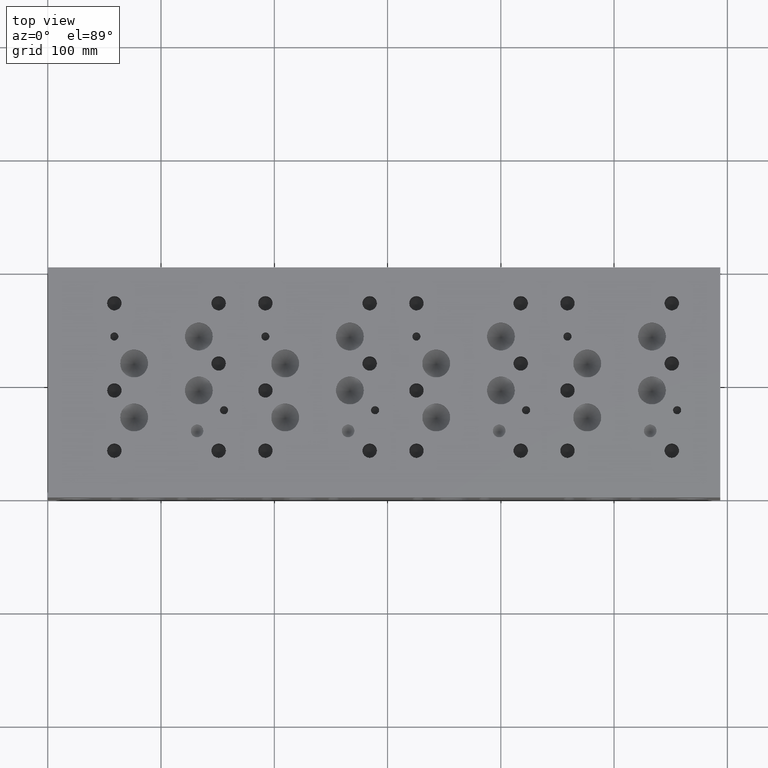
[diagram: clean part render]
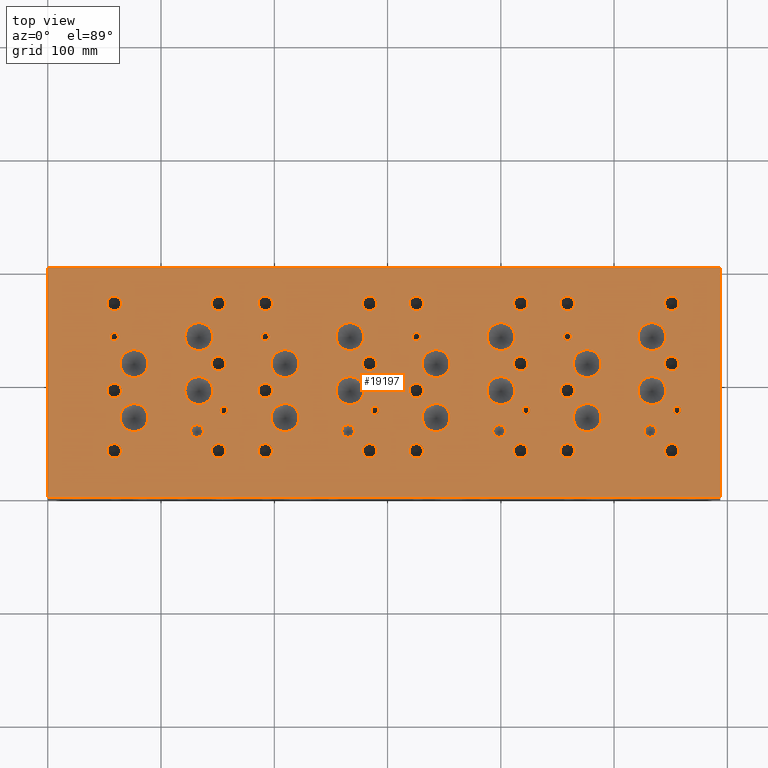
[diagram: same view with one face highlighted and labeled with its STEP entity id]
A machine part, top view. The second image highlights one B-rep face of the part: STEP entity #19197.
In plain terms, the highlighted planar face has unit normal (0, 0, 1).
Its self-contained STEP definition (entity closure, byte-faithful):
#989=CIRCLE('',#20367,6.35);
#990=CIRCLE('',#20368,6.35);
#996=CIRCLE('',#20378,6.35);
#997=CIRCLE('',#20379,6.35);
#1003=CIRCLE('',#20389,6.35);
#1004=CIRCLE('',#20390,6.35);
#1010=CIRCLE('',#20400,6.35);
#1011=CIRCLE('',#20401,6.35);
#1017=CIRCLE('',#20411,6.35);
#1018=CIRCLE('',#20412,6.35);
#1024=CIRCLE('',#20422,6.35);
#1025=CIRCLE('',#20423,6.35);
#1031=CIRCLE('',#20433,6.35);
#1032=CIRCLE('',#20434,6.35);
#1038=CIRCLE('',#20444,6.35);
#1039=CIRCLE('',#20445,6.35);
#1045=CIRCLE('',#20455,6.35);
#1046=CIRCLE('',#20456,6.35);
#1052=CIRCLE('',#20466,6.35);
#1053=CIRCLE('',#20467,6.35);
#1059=CIRCLE('',#20477,6.35);
#1060=CIRCLE('',#20478,6.35);
#1066=CIRCLE('',#20488,6.35);
#1067=CIRCLE('',#20489,6.35);
#1073=CIRCLE('',#20499,6.35);
#1074=CIRCLE('',#20500,6.35);
#1080=CIRCLE('',#20510,6.35);
#1081=CIRCLE('',#20511,6.35);
#1087=CIRCLE('',#20521,6.35);
#1088=CIRCLE('',#20522,6.35);
#1094=CIRCLE('',#20532,6.35);
#1095=CIRCLE('',#20533,6.35);
#1101=CIRCLE('',#20543,6.35);
#1102=CIRCLE('',#20544,6.35);
#1108=CIRCLE('',#20554,6.35);
#1109=CIRCLE('',#20555,6.35);
#1112=CIRCLE('',#20561,5.5626);
#1113=CIRCLE('',#20562,5.5626);
#1116=CIRCLE('',#20567,5.5626);
#1117=CIRCLE('',#20568,5.5626);
#1120=CIRCLE('',#20573,5.5626);
#1121=CIRCLE('',#20574,5.5626);
#1124=CIRCLE('',#20579,5.5626);
#1125=CIRCLE('',#20580,5.5626);
#1128=CIRCLE('',#20585,12.3063);
#1129=CIRCLE('',#20586,12.3063);
#1132=CIRCLE('',#20591,12.3063);
#1133=CIRCLE('',#20592,12.3063);
#1136=CIRCLE('',#20597,12.3063);
#1137=CIRCLE('',#20598,12.3063);
#1140=CIRCLE('',#20603,12.3063);
#1141=CIRCLE('',#20604,12.3063);
#1144=CIRCLE('',#20609,12.3063);
#1145=CIRCLE('',#20610,12.3063);
#1148=CIRCLE('',#20615,12.3063);
#1149=CIRCLE('',#20616,12.3063);
#1152=CIRCLE('',#20621,12.3063);
#1153=CIRCLE('',#20622,12.3063);
#1156=CIRCLE('',#20627,12.3063);
#1157=CIRCLE('',#20628,12.3063);
#1160=CIRCLE('',#20633,12.3063);
#1161=CIRCLE('',#20634,12.3063);
#1164=CIRCLE('',#20639,12.3063);
#1165=CIRCLE('',#20640,12.3063);
#1168=CIRCLE('',#20645,12.3063);
#1169=CIRCLE('',#20646,12.3063);
#1172=CIRCLE('',#20651,12.3063);
#1173=CIRCLE('',#20652,12.3063);
#1176=CIRCLE('',#20657,12.3063);
#1177=CIRCLE('',#20658,12.3063);
#1180=CIRCLE('',#20663,12.3063);
#1181=CIRCLE('',#20664,12.3063);
#1184=CIRCLE('',#20669,12.3063);
#1185=CIRCLE('',#20670,12.3063);
#1188=CIRCLE('',#20675,12.3063);
#1189=CIRCLE('',#20676,12.3063);
#1192=CIRCLE('',#20681,3.5687);
#1193=CIRCLE('',#20682,3.5687);
#1196=CIRCLE('',#20687,3.5687);
#1197=CIRCLE('',#20688,3.5687);
#1200=CIRCLE('',#20693,3.5687);
#1201=CIRCLE('',#20694,3.5687);
#1204=CIRCLE('',#20699,3.5687);
#1205=CIRCLE('',#20700,3.5687);
#1208=CIRCLE('',#20705,3.5687);
#1209=CIRCLE('',#20706,3.5687);
#1212=CIRCLE('',#20711,3.5687);
#1213=CIRCLE('',#20712,3.5687);
#1216=CIRCLE('',#20717,3.5687);
#1217=CIRCLE('',#20718,3.5687);
#1220=CIRCLE('',#20723,3.5687);
#1221=CIRCLE('',#20724,3.5687);
#1227=CIRCLE('',#20733,6.35);
#1228=CIRCLE('',#20734,6.35);
#1234=CIRCLE('',#20744,6.35);
#1235=CIRCLE('',#20745,6.35);
#1241=CIRCLE('',#20755,6.35);
#1242=CIRCLE('',#20756,6.35);
#1248=CIRCLE('',#20766,6.35);
#1249=CIRCLE('',#20767,6.35);
#1255=CIRCLE('',#20777,6.35);
#1256=CIRCLE('',#20778,6.35);
#1262=CIRCLE('',#20788,6.35);
#1263=CIRCLE('',#20789,6.35);
#1813=FACE_BOUND('',#4079,.T.);
#1814=FACE_BOUND('',#4080,.T.);
#1815=FACE_BOUND('',#4081,.T.);
#1816=FACE_BOUND('',#4082,.T.);
#1817=FACE_BOUND('',#4083,.T.);
#1818=FACE_BOUND('',#4084,.T.);
#1819=FACE_BOUND('',#4085,.T.);
#1820=FACE_BOUND('',#4086,.T.);
#1821=FACE_BOUND('',#4087,.T.);
#1822=FACE_BOUND('',#4088,.T.);
#1823=FACE_BOUND('',#4089,.T.);
#1824=FACE_BOUND('',#4090,.T.);
#1825=FACE_BOUND('',#4091,.T.);
#1826=FACE_BOUND('',#4092,.T.);
#1827=FACE_BOUND('',#4093,.T.);
#1828=FACE_BOUND('',#4094,.T.);
#1829=FACE_BOUND('',#4095,.T.);
#1830=FACE_BOUND('',#4096,.T.);
#1831=FACE_BOUND('',#4097,.T.);
#1832=FACE_BOUND('',#4098,.T.);
#1833=FACE_BOUND('',#4099,.T.);
#1834=FACE_BOUND('',#4100,.T.);
#1835=FACE_BOUND('',#4101,.T.);
#1836=FACE_BOUND('',#4102,.T.);
#1837=FACE_BOUND('',#4103,.T.);
#1838=FACE_BOUND('',#4104,.T.);
#1839=FACE_BOUND('',#4105,.T.);
#1840=FACE_BOUND('',#4106,.T.);
#1841=FACE_BOUND('',#4107,.T.);
#1842=FACE_BOUND('',#4108,.T.);
#1843=FACE_BOUND('',#4109,.T.);
#1844=FACE_BOUND('',#4110,.T.);
#1845=FACE_BOUND('',#4111,.T.);
#1846=FACE_BOUND('',#4112,.T.);
#1847=FACE_BOUND('',#4113,.T.);
#1848=FACE_BOUND('',#4114,.T.);
#1849=FACE_BOUND('',#4115,.T.);
#1850=FACE_BOUND('',#4116,.T.);
#1851=FACE_BOUND('',#4117,.T.);
#1852=FACE_BOUND('',#4118,.T.);
#1853=FACE_BOUND('',#4119,.T.);
#1854=FACE_BOUND('',#4120,.T.);
#1855=FACE_BOUND('',#4121,.T.);
#1856=FACE_BOUND('',#4122,.T.);
#1857=FACE_BOUND('',#4123,.T.);
#1858=FACE_BOUND('',#4124,.T.);
#1859=FACE_BOUND('',#4125,.T.);
#1860=FACE_BOUND('',#4126,.T.);
#1861=FACE_BOUND('',#4127,.T.);
#1862=FACE_BOUND('',#4128,.T.);
#1863=FACE_BOUND('',#4129,.T.);
#1864=FACE_BOUND('',#4130,.T.);
#2864=FACE_OUTER_BOUND('',#4078,.T.);
#4078=EDGE_LOOP('',(#17032,#17033,#17034,#17035));
#4079=EDGE_LOOP('',(#17036,#17037));
#4080=EDGE_LOOP('',(#17038,#17039));
#4081=EDGE_LOOP('',(#17040,#17041));
#4082=EDGE_LOOP('',(#17042,#17043));
#4083=EDGE_LOOP('',(#17044,#17045));
#4084=EDGE_LOOP('',(#17046,#17047));
#4085=EDGE_LOOP('',(#17048,#17049));
#4086=EDGE_LOOP('',(#17050,#17051));
#4087=EDGE_LOOP('',(#17052,#17053));
#4088=EDGE_LOOP('',(#17054,#17055));
#4089=EDGE_LOOP('',(#17056,#17057));
#4090=EDGE_LOOP('',(#17058,#17059));
#4091=EDGE_LOOP('',(#17060,#17061));
#4092=EDGE_LOOP('',(#17062,#17063));
#4093=EDGE_LOOP('',(#17064,#17065));
#4094=EDGE_LOOP('',(#17066,#17067));
#4095=EDGE_LOOP('',(#17068,#17069));
#4096=EDGE_LOOP('',(#17070,#17071));
#4097=EDGE_LOOP('',(#17072,#17073));
#4098=EDGE_LOOP('',(#17074,#17075));
#4099=EDGE_LOOP('',(#17076,#17077));
#4100=EDGE_LOOP('',(#17078,#17079));
#4101=EDGE_LOOP('',(#17080,#17081));
#4102=EDGE_LOOP('',(#17082,#17083));
#4103=EDGE_LOOP('',(#17084,#17085));
#4104=EDGE_LOOP('',(#17086,#17087));
#4105=EDGE_LOOP('',(#17088,#17089));
#4106=EDGE_LOOP('',(#17090,#17091));
#4107=EDGE_LOOP('',(#17092,#17093));
#4108=EDGE_LOOP('',(#17094,#17095));
#4109=EDGE_LOOP('',(#17096,#17097));
#4110=EDGE_LOOP('',(#17098,#17099));
#4111=EDGE_LOOP('',(#17100,#17101));
#4112=EDGE_LOOP('',(#17102,#17103));
#4113=EDGE_LOOP('',(#17104,#17105));
#4114=EDGE_LOOP('',(#17106,#17107));
#4115=EDGE_LOOP('',(#17108,#17109));
#4116=EDGE_LOOP('',(#17110,#17111));
#4117=EDGE_LOOP('',(#17112,#17113));
#4118=EDGE_LOOP('',(#17114,#17115));
#4119=EDGE_LOOP('',(#17116,#17117));
#4120=EDGE_LOOP('',(#17118,#17119));
#4121=EDGE_LOOP('',(#17120,#17121));
#4122=EDGE_LOOP('',(#17122,#17123));
#4123=EDGE_LOOP('',(#17124,#17125));
#4124=EDGE_LOOP('',(#17126,#17127));
#4125=EDGE_LOOP('',(#17128,#17129));
#4126=EDGE_LOOP('',(#17130,#17131));
#4127=EDGE_LOOP('',(#17132,#17133));
#4128=EDGE_LOOP('',(#17134,#17135));
#4129=EDGE_LOOP('',(#17136,#17137));
#4130=EDGE_LOOP('',(#17138,#17139));
#4167=LINE('',#25611,#5736);
#4563=LINE('',#27535,#6132);
#4621=LINE('',#27838,#6190);
#5700=LINE('',#33421,#7269);
#5736=VECTOR('',#20860,10.);
#6132=VECTOR('',#21526,10.);
#6190=VECTOR('',#21670,10.);
#7269=VECTOR('',#25527,10.);
#7294=VERTEX_POINT('',#25608);
#7295=VERTEX_POINT('',#25610);
#7840=VERTEX_POINT('',#27533);
#7914=VERTEX_POINT('',#27837);
#8856=VERTEX_POINT('',#32541);
#8857=VERTEX_POINT('',#32542);
#8864=VERTEX_POINT('',#32563);
#8865=VERTEX_POINT('',#32564);
#8872=VERTEX_POINT('',#32585);
#8873=VERTEX_POINT('',#32586);
#8880=VERTEX_POINT('',#32607);
#8881=VERTEX_POINT('',#32608);
#8888=VERTEX_POINT('',#32629);
#8889=VERTEX_POINT('',#32630);
#8896=VERTEX_POINT('',#32651);
#8897=VERTEX_POINT('',#32652);
#8904=VERTEX_POINT('',#32673);
#8905=VERTEX_POINT('',#32674);
#8912=VERTEX_POINT('',#32695);
#8913=VERTEX_POINT('',#32696);
#8920=VERTEX_POINT('',#32717);
#8921=VERTEX_POINT('',#32718);
#8928=VERTEX_POINT('',#32739);
#8929=VERTEX_POINT('',#32740);
#8936=VERTEX_POINT('',#32761);
#8937=VERTEX_POINT('',#32762);
#8944=VERTEX_POINT('',#32783);
#8945=VERTEX_POINT('',#32784);
#8952=VERTEX_POINT('',#32805);
#8953=VERTEX_POINT('',#32806);
#8960=VERTEX_POINT('',#32827);
#8961=VERTEX_POINT('',#32828);
#8968=VERTEX_POINT('',#32849);
#8969=VERTEX_POINT('',#32850);
#8976=VERTEX_POINT('',#32871);
#8977=VERTEX_POINT('',#32872);
#8984=VERTEX_POINT('',#32893);
#8985=VERTEX_POINT('',#32894);
#8992=VERTEX_POINT('',#32915);
#8993=VERTEX_POINT('',#32916);
#8997=VERTEX_POINT('',#32930);
#8998=VERTEX_POINT('',#32931);
#9002=VERTEX_POINT('',#32943);
#9003=VERTEX_POINT('',#32944);
#9007=VERTEX_POINT('',#32956);
#9008=VERTEX_POINT('',#32957);
#9012=VERTEX_POINT('',#32969);
#9013=VERTEX_POINT('',#32970);
#9017=VERTEX_POINT('',#32982);
#9018=VERTEX_POINT('',#32983);
#9022=VERTEX_POINT('',#32995);
#9023=VERTEX_POINT('',#32996);
#9027=VERTEX_POINT('',#33008);
#9028=VERTEX_POINT('',#33009);
#9032=VERTEX_POINT('',#33021);
#9033=VERTEX_POINT('',#33022);
#9037=VERTEX_POINT('',#33034);
#9038=VERTEX_POINT('',#33035);
#9042=VERTEX_POINT('',#33047);
#9043=VERTEX_POINT('',#33048);
#9047=VERTEX_POINT('',#33060);
#9048=VERTEX_POINT('',#33061);
#9052=VERTEX_POINT('',#33073);
#9053=VERTEX_POINT('',#33074);
#9057=VERTEX_POINT('',#33086);
#9058=VERTEX_POINT('',#33087);
#9062=VERTEX_POINT('',#33099);
#9063=VERTEX_POINT('',#33100);
#9067=VERTEX_POINT('',#33112);
#9068=VERTEX_POINT('',#33113);
#9072=VERTEX_POINT('',#33125);
#9073=VERTEX_POINT('',#33126);
#9077=VERTEX_POINT('',#33138);
#9078=VERTEX_POINT('',#33139);
#9082=VERTEX_POINT('',#33151);
#9083=VERTEX_POINT('',#33152);
#9087=VERTEX_POINT('',#33164);
#9088=VERTEX_POINT('',#33165);
#9092=VERTEX_POINT('',#33177);
#9093=VERTEX_POINT('',#33178);
#9097=VERTEX_POINT('',#33190);
#9098=VERTEX_POINT('',#33191);
#9102=VERTEX_POINT('',#33203);
#9103=VERTEX_POINT('',#33204);
#9107=VERTEX_POINT('',#33216);
#9108=VERTEX_POINT('',#33217);
#9112=VERTEX_POINT('',#33229);
#9113=VERTEX_POINT('',#33230);
#9117=VERTEX_POINT('',#33242);
#9118=VERTEX_POINT('',#33243);
#9122=VERTEX_POINT('',#33255);
#9123=VERTEX_POINT('',#33256);
#9127=VERTEX_POINT('',#33268);
#9128=VERTEX_POINT('',#33269);
#9132=VERTEX_POINT('',#33281);
#9133=VERTEX_POINT('',#33282);
#9140=VERTEX_POINT('',#33301);
#9141=VERTEX_POINT('',#33302);
#9148=VERTEX_POINT('',#33323);
#9149=VERTEX_POINT('',#33324);
#9156=VERTEX_POINT('',#33345);
#9157=VERTEX_POINT('',#33346);
#9164=VERTEX_POINT('',#33367);
#9165=VERTEX_POINT('',#33368);
#9172=VERTEX_POINT('',#33389);
#9173=VERTEX_POINT('',#33390);
#9180=VERTEX_POINT('',#33411);
#9181=VERTEX_POINT('',#33412);
#9217=EDGE_CURVE('',#7295,#7294,#4167,.T.);
#9839=EDGE_CURVE('',#7294,#7840,#4563,.T.);
#9937=EDGE_CURVE('',#7914,#7295,#4621,.T.);
#11432=EDGE_CURVE('',#8856,#8857,#989,.T.);
#11433=EDGE_CURVE('',#8857,#8856,#990,.T.);
#11442=EDGE_CURVE('',#8864,#8865,#996,.T.);
#11443=EDGE_CURVE('',#8865,#8864,#997,.T.);
#11452=EDGE_CURVE('',#8872,#8873,#1003,.T.);
#11453=EDGE_CURVE('',#8873,#8872,#1004,.T.);
#11462=EDGE_CURVE('',#8880,#8881,#1010,.T.);
#11463=EDGE_CURVE('',#8881,#8880,#1011,.T.);
#11472=EDGE_CURVE('',#8888,#8889,#1017,.T.);
#11473=EDGE_CURVE('',#8889,#8888,#1018,.T.);
#11482=EDGE_CURVE('',#8896,#8897,#1024,.T.);
#11483=EDGE_CURVE('',#8897,#8896,#1025,.T.);
#11492=EDGE_CURVE('',#8904,#8905,#1031,.T.);
#11493=EDGE_CURVE('',#8905,#8904,#1032,.T.);
#11502=EDGE_CURVE('',#8912,#8913,#1038,.T.);
#11503=EDGE_CURVE('',#8913,#8912,#1039,.T.);
#11512=EDGE_CURVE('',#8920,#8921,#1045,.T.);
#11513=EDGE_CURVE('',#8921,#8920,#1046,.T.);
#11522=EDGE_CURVE('',#8928,#8929,#1052,.T.);
#11523=EDGE_CURVE('',#8929,#8928,#1053,.T.);
#11532=EDGE_CURVE('',#8936,#8937,#1059,.T.);
#11533=EDGE_CURVE('',#8937,#8936,#1060,.T.);
#11542=EDGE_CURVE('',#8944,#8945,#1066,.T.);
#11543=EDGE_CURVE('',#8945,#8944,#1067,.T.);
#11552=EDGE_CURVE('',#8952,#8953,#1073,.T.);
#11553=EDGE_CURVE('',#8953,#8952,#1074,.T.);
#11562=EDGE_CURVE('',#8960,#8961,#1080,.T.);
#11563=EDGE_CURVE('',#8961,#8960,#1081,.T.);
#11572=EDGE_CURVE('',#8968,#8969,#1087,.T.);
#11573=EDGE_CURVE('',#8969,#8968,#1088,.T.);
#11582=EDGE_CURVE('',#8976,#8977,#1094,.T.);
#11583=EDGE_CURVE('',#8977,#8976,#1095,.T.);
#11592=EDGE_CURVE('',#8984,#8985,#1101,.T.);
#11593=EDGE_CURVE('',#8985,#8984,#1102,.T.);
#11602=EDGE_CURVE('',#8992,#8993,#1108,.T.);
#11603=EDGE_CURVE('',#8993,#8992,#1109,.T.);
#11609=EDGE_CURVE('',#8997,#8998,#1112,.T.);
#11610=EDGE_CURVE('',#8998,#8997,#1113,.T.);
#11615=EDGE_CURVE('',#9002,#9003,#1116,.T.);
#11616=EDGE_CURVE('',#9003,#9002,#1117,.T.);
#11621=EDGE_CURVE('',#9007,#9008,#1120,.T.);
#11622=EDGE_CURVE('',#9008,#9007,#1121,.T.);
#11627=EDGE_CURVE('',#9012,#9013,#1124,.T.);
#11628=EDGE_CURVE('',#9013,#9012,#1125,.T.);
#11633=EDGE_CURVE('',#9017,#9018,#1128,.T.);
#11634=EDGE_CURVE('',#9018,#9017,#1129,.T.);
#11639=EDGE_CURVE('',#9022,#9023,#1132,.T.);
#11640=EDGE_CURVE('',#9023,#9022,#1133,.T.);
#11645=EDGE_CURVE('',#9027,#9028,#1136,.T.);
#11646=EDGE_CURVE('',#9028,#9027,#1137,.T.);
#11651=EDGE_CURVE('',#9032,#9033,#1140,.T.);
#11652=EDGE_CURVE('',#9033,#9032,#1141,.T.);
#11657=EDGE_CURVE('',#9037,#9038,#1144,.T.);
#11658=EDGE_CURVE('',#9038,#9037,#1145,.T.);
#11663=EDGE_CURVE('',#9042,#9043,#1148,.T.);
#11664=EDGE_CURVE('',#9043,#9042,#1149,.T.);
#11669=EDGE_CURVE('',#9047,#9048,#1152,.T.);
#11670=EDGE_CURVE('',#9048,#9047,#1153,.T.);
#11675=EDGE_CURVE('',#9052,#9053,#1156,.T.);
#11676=EDGE_CURVE('',#9053,#9052,#1157,.T.);
#11681=EDGE_CURVE('',#9057,#9058,#1160,.T.);
#11682=EDGE_CURVE('',#9058,#9057,#1161,.T.);
#11687=EDGE_CURVE('',#9062,#9063,#1164,.T.);
#11688=EDGE_CURVE('',#9063,#9062,#1165,.T.);
#11693=EDGE_CURVE('',#9067,#9068,#1168,.T.);
#11694=EDGE_CURVE('',#9068,#9067,#1169,.T.);
#11699=EDGE_CURVE('',#9072,#9073,#1172,.T.);
#11700=EDGE_CURVE('',#9073,#9072,#1173,.T.);
#11705=EDGE_CURVE('',#9077,#9078,#1176,.T.);
#11706=EDGE_CURVE('',#9078,#9077,#1177,.T.);
#11711=EDGE_CURVE('',#9082,#9083,#1180,.T.);
#11712=EDGE_CURVE('',#9083,#9082,#1181,.T.);
#11717=EDGE_CURVE('',#9087,#9088,#1184,.T.);
#11718=EDGE_CURVE('',#9088,#9087,#1185,.T.);
#11723=EDGE_CURVE('',#9092,#9093,#1188,.T.);
#11724=EDGE_CURVE('',#9093,#9092,#1189,.T.);
#11729=EDGE_CURVE('',#9097,#9098,#1192,.T.);
#11730=EDGE_CURVE('',#9098,#9097,#1193,.T.);
#11735=EDGE_CURVE('',#9102,#9103,#1196,.T.);
#11736=EDGE_CURVE('',#9103,#9102,#1197,.T.);
#11741=EDGE_CURVE('',#9107,#9108,#1200,.T.);
#11742=EDGE_CURVE('',#9108,#9107,#1201,.T.);
#11747=EDGE_CURVE('',#9112,#9113,#1204,.T.);
#11748=EDGE_CURVE('',#9113,#9112,#1205,.T.);
#11753=EDGE_CURVE('',#9117,#9118,#1208,.T.);
#11754=EDGE_CURVE('',#9118,#9117,#1209,.T.);
#11759=EDGE_CURVE('',#9122,#9123,#1212,.T.);
#11760=EDGE_CURVE('',#9123,#9122,#1213,.T.);
#11765=EDGE_CURVE('',#9127,#9128,#1216,.T.);
#11766=EDGE_CURVE('',#9128,#9127,#1217,.T.);
#11771=EDGE_CURVE('',#9132,#9133,#1220,.T.);
#11772=EDGE_CURVE('',#9133,#9132,#1221,.T.);
#11780=EDGE_CURVE('',#9140,#9141,#1227,.T.);
#11781=EDGE_CURVE('',#9141,#9140,#1228,.T.);
#11790=EDGE_CURVE('',#9148,#9149,#1234,.T.);
#11791=EDGE_CURVE('',#9149,#9148,#1235,.T.);
#11800=EDGE_CURVE('',#9156,#9157,#1241,.T.);
#11801=EDGE_CURVE('',#9157,#9156,#1242,.T.);
#11810=EDGE_CURVE('',#9164,#9165,#1248,.T.);
#11811=EDGE_CURVE('',#9165,#9164,#1249,.T.);
#11820=EDGE_CURVE('',#9172,#9173,#1255,.T.);
#11821=EDGE_CURVE('',#9173,#9172,#1256,.T.);
#11830=EDGE_CURVE('',#9180,#9181,#1262,.T.);
#11831=EDGE_CURVE('',#9181,#9180,#1263,.T.);
#11835=EDGE_CURVE('',#7840,#7914,#5700,.T.);
#17032=ORIENTED_EDGE('',*,*,#9217,.T.);
#17033=ORIENTED_EDGE('',*,*,#9839,.T.);
#17034=ORIENTED_EDGE('',*,*,#11835,.T.);
#17035=ORIENTED_EDGE('',*,*,#9937,.T.);
#17036=ORIENTED_EDGE('',*,*,#11432,.T.);
#17037=ORIENTED_EDGE('',*,*,#11433,.T.);
#17038=ORIENTED_EDGE('',*,*,#11442,.T.);
#17039=ORIENTED_EDGE('',*,*,#11443,.T.);
#17040=ORIENTED_EDGE('',*,*,#11452,.T.);
#17041=ORIENTED_EDGE('',*,*,#11453,.T.);
#17042=ORIENTED_EDGE('',*,*,#11462,.T.);
#17043=ORIENTED_EDGE('',*,*,#11463,.T.);
#17044=ORIENTED_EDGE('',*,*,#11472,.T.);
#17045=ORIENTED_EDGE('',*,*,#11473,.T.);
#17046=ORIENTED_EDGE('',*,*,#11482,.T.);
#17047=ORIENTED_EDGE('',*,*,#11483,.T.);
#17048=ORIENTED_EDGE('',*,*,#11492,.T.);
#17049=ORIENTED_EDGE('',*,*,#11493,.T.);
#17050=ORIENTED_EDGE('',*,*,#11502,.T.);
#17051=ORIENTED_EDGE('',*,*,#11503,.T.);
#17052=ORIENTED_EDGE('',*,*,#11512,.T.);
#17053=ORIENTED_EDGE('',*,*,#11513,.T.);
#17054=ORIENTED_EDGE('',*,*,#11522,.T.);
#17055=ORIENTED_EDGE('',*,*,#11523,.T.);
#17056=ORIENTED_EDGE('',*,*,#11532,.T.);
#17057=ORIENTED_EDGE('',*,*,#11533,.T.);
#17058=ORIENTED_EDGE('',*,*,#11542,.T.);
#17059=ORIENTED_EDGE('',*,*,#11543,.T.);
#17060=ORIENTED_EDGE('',*,*,#11552,.T.);
#17061=ORIENTED_EDGE('',*,*,#11553,.T.);
#17062=ORIENTED_EDGE('',*,*,#11562,.T.);
#17063=ORIENTED_EDGE('',*,*,#11563,.T.);
#17064=ORIENTED_EDGE('',*,*,#11572,.T.);
#17065=ORIENTED_EDGE('',*,*,#11573,.T.);
#17066=ORIENTED_EDGE('',*,*,#11582,.T.);
#17067=ORIENTED_EDGE('',*,*,#11583,.T.);
#17068=ORIENTED_EDGE('',*,*,#11592,.T.);
#17069=ORIENTED_EDGE('',*,*,#11593,.T.);
#17070=ORIENTED_EDGE('',*,*,#11602,.T.);
#17071=ORIENTED_EDGE('',*,*,#11603,.T.);
#17072=ORIENTED_EDGE('',*,*,#11609,.T.);
#17073=ORIENTED_EDGE('',*,*,#11610,.T.);
#17074=ORIENTED_EDGE('',*,*,#11615,.T.);
#17075=ORIENTED_EDGE('',*,*,#11616,.T.);
#17076=ORIENTED_EDGE('',*,*,#11621,.T.);
#17077=ORIENTED_EDGE('',*,*,#11622,.T.);
#17078=ORIENTED_EDGE('',*,*,#11627,.T.);
#17079=ORIENTED_EDGE('',*,*,#11628,.T.);
#17080=ORIENTED_EDGE('',*,*,#11633,.T.);
#17081=ORIENTED_EDGE('',*,*,#11634,.T.);
#17082=ORIENTED_EDGE('',*,*,#11639,.T.);
#17083=ORIENTED_EDGE('',*,*,#11640,.T.);
#17084=ORIENTED_EDGE('',*,*,#11645,.T.);
#17085=ORIENTED_EDGE('',*,*,#11646,.T.);
#17086=ORIENTED_EDGE('',*,*,#11651,.T.);
#17087=ORIENTED_EDGE('',*,*,#11652,.T.);
#17088=ORIENTED_EDGE('',*,*,#11657,.T.);
#17089=ORIENTED_EDGE('',*,*,#11658,.T.);
#17090=ORIENTED_EDGE('',*,*,#11663,.T.);
#17091=ORIENTED_EDGE('',*,*,#11664,.T.);
#17092=ORIENTED_EDGE('',*,*,#11669,.T.);
#17093=ORIENTED_EDGE('',*,*,#11670,.T.);
#17094=ORIENTED_EDGE('',*,*,#11675,.T.);
#17095=ORIENTED_EDGE('',*,*,#11676,.T.);
#17096=ORIENTED_EDGE('',*,*,#11681,.T.);
#17097=ORIENTED_EDGE('',*,*,#11682,.T.);
#17098=ORIENTED_EDGE('',*,*,#11687,.T.);
#17099=ORIENTED_EDGE('',*,*,#11688,.T.);
#17100=ORIENTED_EDGE('',*,*,#11693,.T.);
#17101=ORIENTED_EDGE('',*,*,#11694,.T.);
#17102=ORIENTED_EDGE('',*,*,#11699,.T.);
#17103=ORIENTED_EDGE('',*,*,#11700,.T.);
#17104=ORIENTED_EDGE('',*,*,#11705,.T.);
#17105=ORIENTED_EDGE('',*,*,#11706,.T.);
#17106=ORIENTED_EDGE('',*,*,#11711,.T.);
#17107=ORIENTED_EDGE('',*,*,#11712,.T.);
#17108=ORIENTED_EDGE('',*,*,#11717,.T.);
#17109=ORIENTED_EDGE('',*,*,#11718,.T.);
#17110=ORIENTED_EDGE('',*,*,#11723,.T.);
#17111=ORIENTED_EDGE('',*,*,#11724,.T.);
#17112=ORIENTED_EDGE('',*,*,#11729,.T.);
#17113=ORIENTED_EDGE('',*,*,#11730,.T.);
#17114=ORIENTED_EDGE('',*,*,#11735,.T.);
#17115=ORIENTED_EDGE('',*,*,#11736,.T.);
#17116=ORIENTED_EDGE('',*,*,#11741,.T.);
#17117=ORIENTED_EDGE('',*,*,#11742,.T.);
#17118=ORIENTED_EDGE('',*,*,#11747,.T.);
#17119=ORIENTED_EDGE('',*,*,#11748,.T.);
#17120=ORIENTED_EDGE('',*,*,#11753,.T.);
#17121=ORIENTED_EDGE('',*,*,#11754,.T.);
#17122=ORIENTED_EDGE('',*,*,#11759,.T.);
#17123=ORIENTED_EDGE('',*,*,#11760,.T.);
#17124=ORIENTED_EDGE('',*,*,#11765,.T.);
#17125=ORIENTED_EDGE('',*,*,#11766,.T.);
#17126=ORIENTED_EDGE('',*,*,#11771,.T.);
#17127=ORIENTED_EDGE('',*,*,#11772,.T.);
#17128=ORIENTED_EDGE('',*,*,#11780,.T.);
#17129=ORIENTED_EDGE('',*,*,#11781,.T.);
#17130=ORIENTED_EDGE('',*,*,#11790,.T.);
#17131=ORIENTED_EDGE('',*,*,#11791,.T.);
#17132=ORIENTED_EDGE('',*,*,#11800,.T.);
#17133=ORIENTED_EDGE('',*,*,#11801,.T.);
#17134=ORIENTED_EDGE('',*,*,#11810,.T.);
#17135=ORIENTED_EDGE('',*,*,#11811,.T.);
#17136=ORIENTED_EDGE('',*,*,#11820,.T.);
#17137=ORIENTED_EDGE('',*,*,#11821,.T.);
#17138=ORIENTED_EDGE('',*,*,#11830,.T.);
#17139=ORIENTED_EDGE('',*,*,#11831,.T.);
#17642=PLANE('',#20795);
#19197=ADVANCED_FACE('',(#2864,#1813,#1814,#1815,#1816,#1817,#1818,#1819,
#1820,#1821,#1822,#1823,#1824,#1825,#1826,#1827,#1828,#1829,#1830,#1831,
#1832,#1833,#1834,#1835,#1836,#1837,#1838,#1839,#1840,#1841,#1842,#1843,
#1844,#1845,#1846,#1847,#1848,#1849,#1850,#1851,#1852,#1853,#1854,#1855,
#1856,#1857,#1858,#1859,#1860,#1861,#1862,#1863,#1864),#17642,.T.);
#20367=AXIS2_PLACEMENT_3D('',#32543,#24547,#24548);
#20368=AXIS2_PLACEMENT_3D('',#32544,#24549,#24550);
#20378=AXIS2_PLACEMENT_3D('',#32565,#24572,#24573);
#20379=AXIS2_PLACEMENT_3D('',#32566,#24574,#24575);
#20389=AXIS2_PLACEMENT_3D('',#32587,#24597,#24598);
#20390=AXIS2_PLACEMENT_3D('',#32588,#24599,#24600);
#20400=AXIS2_PLACEMENT_3D('',#32609,#24622,#24623);
#20401=AXIS2_PLACEMENT_3D('',#32610,#24624,#24625);
#20411=AXIS2_PLACEMENT_3D('',#32631,#24647,#24648);
#20412=AXIS2_PLACEMENT_3D('',#32632,#24649,#24650);
#20422=AXIS2_PLACEMENT_3D('',#32653,#24672,#24673);
#20423=AXIS2_PLACEMENT_3D('',#32654,#24674,#24675);
#20433=AXIS2_PLACEMENT_3D('',#32675,#24697,#24698);
#20434=AXIS2_PLACEMENT_3D('',#32676,#24699,#24700);
#20444=AXIS2_PLACEMENT_3D('',#32697,#24722,#24723);
#20445=AXIS2_PLACEMENT_3D('',#32698,#24724,#24725);
#20455=AXIS2_PLACEMENT_3D('',#32719,#24747,#24748);
#20456=AXIS2_PLACEMENT_3D('',#32720,#24749,#24750);
#20466=AXIS2_PLACEMENT_3D('',#32741,#24772,#24773);
#20467=AXIS2_PLACEMENT_3D('',#32742,#24774,#24775);
#20477=AXIS2_PLACEMENT_3D('',#32763,#24797,#24798);
#20478=AXIS2_PLACEMENT_3D('',#32764,#24799,#24800);
#20488=AXIS2_PLACEMENT_3D('',#32785,#24822,#24823);
#20489=AXIS2_PLACEMENT_3D('',#32786,#24824,#24825);
#20499=AXIS2_PLACEMENT_3D('',#32807,#24847,#24848);
#20500=AXIS2_PLACEMENT_3D('',#32808,#24849,#24850);
#20510=AXIS2_PLACEMENT_3D('',#32829,#24872,#24873);
#20511=AXIS2_PLACEMENT_3D('',#32830,#24874,#24875);
#20521=AXIS2_PLACEMENT_3D('',#32851,#24897,#24898);
#20522=AXIS2_PLACEMENT_3D('',#32852,#24899,#24900);
#20532=AXIS2_PLACEMENT_3D('',#32873,#24922,#24923);
#20533=AXIS2_PLACEMENT_3D('',#32874,#24924,#24925);
#20543=AXIS2_PLACEMENT_3D('',#32895,#24947,#24948);
#20544=AXIS2_PLACEMENT_3D('',#32896,#24949,#24950);
#20554=AXIS2_PLACEMENT_3D('',#32917,#24972,#24973);
#20555=AXIS2_PLACEMENT_3D('',#32918,#24974,#24975);
#20561=AXIS2_PLACEMENT_3D('',#32932,#24989,#24990);
#20562=AXIS2_PLACEMENT_3D('',#32933,#24991,#24992);
#20567=AXIS2_PLACEMENT_3D('',#32945,#25003,#25004);
#20568=AXIS2_PLACEMENT_3D('',#32946,#25005,#25006);
#20573=AXIS2_PLACEMENT_3D('',#32958,#25017,#25018);
#20574=AXIS2_PLACEMENT_3D('',#32959,#25019,#25020);
#20579=AXIS2_PLACEMENT_3D('',#32971,#25031,#25032);
#20580=AXIS2_PLACEMENT_3D('',#32972,#25033,#25034);
#20585=AXIS2_PLACEMENT_3D('',#32984,#25045,#25046);
#20586=AXIS2_PLACEMENT_3D('',#32985,#25047,#25048);
#20591=AXIS2_PLACEMENT_3D('',#32997,#25059,#25060);
#20592=AXIS2_PLACEMENT_3D('',#32998,#25061,#25062);
#20597=AXIS2_PLACEMENT_3D('',#33010,#25073,#25074);
#20598=AXIS2_PLACEMENT_3D('',#33011,#25075,#25076);
#20603=AXIS2_PLACEMENT_3D('',#33023,#25087,#25088);
#20604=AXIS2_PLACEMENT_3D('',#33024,#25089,#25090);
#20609=AXIS2_PLACEMENT_3D('',#33036,#25101,#25102);
#20610=AXIS2_PLACEMENT_3D('',#33037,#25103,#25104);
#20615=AXIS2_PLACEMENT_3D('',#33049,#25115,#25116);
#20616=AXIS2_PLACEMENT_3D('',#33050,#25117,#25118);
#20621=AXIS2_PLACEMENT_3D('',#33062,#25129,#25130);
#20622=AXIS2_PLACEMENT_3D('',#33063,#25131,#25132);
#20627=AXIS2_PLACEMENT_3D('',#33075,#25143,#25144);
#20628=AXIS2_PLACEMENT_3D('',#33076,#25145,#25146);
#20633=AXIS2_PLACEMENT_3D('',#33088,#25157,#25158);
#20634=AXIS2_PLACEMENT_3D('',#33089,#25159,#25160);
#20639=AXIS2_PLACEMENT_3D('',#33101,#25171,#25172);
#20640=AXIS2_PLACEMENT_3D('',#33102,#25173,#25174);
#20645=AXIS2_PLACEMENT_3D('',#33114,#25185,#25186);
#20646=AXIS2_PLACEMENT_3D('',#33115,#25187,#25188);
#20651=AXIS2_PLACEMENT_3D('',#33127,#25199,#25200);
#20652=AXIS2_PLACEMENT_3D('',#33128,#25201,#25202);
#20657=AXIS2_PLACEMENT_3D('',#33140,#25213,#25214);
#20658=AXIS2_PLACEMENT_3D('',#33141,#25215,#25216);
#20663=AXIS2_PLACEMENT_3D('',#33153,#25227,#25228);
#20664=AXIS2_PLACEMENT_3D('',#33154,#25229,#25230);
#20669=AXIS2_PLACEMENT_3D('',#33166,#25241,#25242);
#20670=AXIS2_PLACEMENT_3D('',#33167,#25243,#25244);
#20675=AXIS2_PLACEMENT_3D('',#33179,#25255,#25256);
#20676=AXIS2_PLACEMENT_3D('',#33180,#25257,#25258);
#20681=AXIS2_PLACEMENT_3D('',#33192,#25269,#25270);
#20682=AXIS2_PLACEMENT_3D('',#33193,#25271,#25272);
#20687=AXIS2_PLACEMENT_3D('',#33205,#25283,#25284);
#20688=AXIS2_PLACEMENT_3D('',#33206,#25285,#25286);
#20693=AXIS2_PLACEMENT_3D('',#33218,#25297,#25298);
#20694=AXIS2_PLACEMENT_3D('',#33219,#25299,#25300);
#20699=AXIS2_PLACEMENT_3D('',#33231,#25311,#25312);
#20700=AXIS2_PLACEMENT_3D('',#33232,#25313,#25314);
#20705=AXIS2_PLACEMENT_3D('',#33244,#25325,#25326);
#20706=AXIS2_PLACEMENT_3D('',#33245,#25327,#25328);
#20711=AXIS2_PLACEMENT_3D('',#33257,#25339,#25340);
#20712=AXIS2_PLACEMENT_3D('',#33258,#25341,#25342);
#20717=AXIS2_PLACEMENT_3D('',#33270,#25353,#25354);
#20718=AXIS2_PLACEMENT_3D('',#33271,#25355,#25356);
#20723=AXIS2_PLACEMENT_3D('',#33283,#25367,#25368);
#20724=AXIS2_PLACEMENT_3D('',#33284,#25369,#25370);
#20733=AXIS2_PLACEMENT_3D('',#33303,#25389,#25390);
#20734=AXIS2_PLACEMENT_3D('',#33304,#25391,#25392);
#20744=AXIS2_PLACEMENT_3D('',#33325,#25414,#25415);
#20745=AXIS2_PLACEMENT_3D('',#33326,#25416,#25417);
#20755=AXIS2_PLACEMENT_3D('',#33347,#25439,#25440);
#20756=AXIS2_PLACEMENT_3D('',#33348,#25441,#25442);
#20766=AXIS2_PLACEMENT_3D('',#33369,#25464,#25465);
#20767=AXIS2_PLACEMENT_3D('',#33370,#25466,#25467);
#20777=AXIS2_PLACEMENT_3D('',#33391,#25489,#25490);
#20778=AXIS2_PLACEMENT_3D('',#33392,#25491,#25492);
#20788=AXIS2_PLACEMENT_3D('',#33413,#25514,#25515);
#20789=AXIS2_PLACEMENT_3D('',#33414,#25516,#25517);
#20795=AXIS2_PLACEMENT_3D('',#33424,#25532,#25533);
#20860=DIRECTION('',(1.,0.,0.));
#21526=DIRECTION('',(0.,1.,0.));
#21670=DIRECTION('',(0.,-1.,0.));
#24547=DIRECTION('center_axis',(0.,0.,-1.));
#24548=DIRECTION('ref_axis',(1.,0.,0.));
#24549=DIRECTION('center_axis',(0.,0.,-1.));
#24550=DIRECTION('ref_axis',(1.,0.,0.));
#24572=DIRECTION('center_axis',(0.,0.,-1.));
#24573=DIRECTION('ref_axis',(1.,0.,0.));
#24574=DIRECTION('center_axis',(0.,0.,-1.));
#24575=DIRECTION('ref_axis',(1.,0.,0.));
#24597=DIRECTION('center_axis',(0.,0.,-1.));
#24598=DIRECTION('ref_axis',(1.,0.,0.));
#24599=DIRECTION('center_axis',(0.,0.,-1.));
#24600=DIRECTION('ref_axis',(1.,0.,0.));
#24622=DIRECTION('center_axis',(0.,0.,-1.));
#24623=DIRECTION('ref_axis',(1.,0.,0.));
#24624=DIRECTION('center_axis',(0.,0.,-1.));
#24625=DIRECTION('ref_axis',(1.,0.,0.));
#24647=DIRECTION('center_axis',(0.,0.,-1.));
#24648=DIRECTION('ref_axis',(1.,0.,0.));
#24649=DIRECTION('center_axis',(0.,0.,-1.));
#24650=DIRECTION('ref_axis',(1.,0.,0.));
#24672=DIRECTION('center_axis',(0.,0.,-1.));
#24673=DIRECTION('ref_axis',(1.,0.,0.));
#24674=DIRECTION('center_axis',(0.,0.,-1.));
#24675=DIRECTION('ref_axis',(1.,0.,0.));
#24697=DIRECTION('center_axis',(0.,0.,-1.));
#24698=DIRECTION('ref_axis',(1.,0.,0.));
#24699=DIRECTION('center_axis',(0.,0.,-1.));
#24700=DIRECTION('ref_axis',(1.,0.,0.));
#24722=DIRECTION('center_axis',(0.,0.,-1.));
#24723=DIRECTION('ref_axis',(1.,0.,0.));
#24724=DIRECTION('center_axis',(0.,0.,-1.));
#24725=DIRECTION('ref_axis',(1.,0.,0.));
#24747=DIRECTION('center_axis',(0.,0.,-1.));
#24748=DIRECTION('ref_axis',(1.,0.,0.));
#24749=DIRECTION('center_axis',(0.,0.,-1.));
#24750=DIRECTION('ref_axis',(1.,0.,0.));
#24772=DIRECTION('center_axis',(0.,0.,-1.));
#24773=DIRECTION('ref_axis',(1.,0.,0.));
#24774=DIRECTION('center_axis',(0.,0.,-1.));
#24775=DIRECTION('ref_axis',(1.,0.,0.));
#24797=DIRECTION('center_axis',(0.,0.,-1.));
#24798=DIRECTION('ref_axis',(1.,0.,0.));
#24799=DIRECTION('center_axis',(0.,0.,-1.));
#24800=DIRECTION('ref_axis',(1.,0.,0.));
#24822=DIRECTION('center_axis',(0.,0.,-1.));
#24823=DIRECTION('ref_axis',(1.,0.,0.));
#24824=DIRECTION('center_axis',(0.,0.,-1.));
#24825=DIRECTION('ref_axis',(1.,0.,0.));
#24847=DIRECTION('center_axis',(0.,0.,-1.));
#24848=DIRECTION('ref_axis',(1.,0.,0.));
#24849=DIRECTION('center_axis',(0.,0.,-1.));
#24850=DIRECTION('ref_axis',(1.,0.,0.));
#24872=DIRECTION('center_axis',(0.,0.,-1.));
#24873=DIRECTION('ref_axis',(1.,0.,0.));
#24874=DIRECTION('center_axis',(0.,0.,-1.));
#24875=DIRECTION('ref_axis',(1.,0.,0.));
#24897=DIRECTION('center_axis',(0.,0.,-1.));
#24898=DIRECTION('ref_axis',(1.,0.,0.));
#24899=DIRECTION('center_axis',(0.,0.,-1.));
#24900=DIRECTION('ref_axis',(1.,0.,0.));
#24922=DIRECTION('center_axis',(0.,0.,-1.));
#24923=DIRECTION('ref_axis',(1.,0.,0.));
#24924=DIRECTION('center_axis',(0.,0.,-1.));
#24925=DIRECTION('ref_axis',(1.,0.,0.));
#24947=DIRECTION('center_axis',(0.,0.,-1.));
#24948=DIRECTION('ref_axis',(1.,0.,0.));
#24949=DIRECTION('center_axis',(0.,0.,-1.));
#24950=DIRECTION('ref_axis',(1.,0.,0.));
#24972=DIRECTION('center_axis',(0.,0.,-1.));
#24973=DIRECTION('ref_axis',(1.,0.,0.));
#24974=DIRECTION('center_axis',(0.,0.,-1.));
#24975=DIRECTION('ref_axis',(1.,0.,0.));
#24989=DIRECTION('center_axis',(0.,0.,-1.));
#24990=DIRECTION('ref_axis',(1.,0.,0.));
#24991=DIRECTION('center_axis',(0.,0.,-1.));
#24992=DIRECTION('ref_axis',(1.,0.,0.));
#25003=DIRECTION('center_axis',(0.,0.,-1.));
#25004=DIRECTION('ref_axis',(1.,0.,0.));
#25005=DIRECTION('center_axis',(0.,0.,-1.));
#25006=DIRECTION('ref_axis',(1.,0.,0.));
#25017=DIRECTION('center_axis',(0.,0.,-1.));
#25018=DIRECTION('ref_axis',(1.,0.,0.));
#25019=DIRECTION('center_axis',(0.,0.,-1.));
#25020=DIRECTION('ref_axis',(1.,0.,0.));
#25031=DIRECTION('center_axis',(0.,0.,-1.));
#25032=DIRECTION('ref_axis',(1.,0.,0.));
#25033=DIRECTION('center_axis',(0.,0.,-1.));
#25034=DIRECTION('ref_axis',(1.,0.,0.));
#25045=DIRECTION('center_axis',(0.,0.,-1.));
#25046=DIRECTION('ref_axis',(1.,0.,0.));
#25047=DIRECTION('center_axis',(0.,0.,-1.));
#25048=DIRECTION('ref_axis',(1.,0.,0.));
#25059=DIRECTION('center_axis',(0.,0.,-1.));
#25060=DIRECTION('ref_axis',(1.,0.,0.));
#25061=DIRECTION('center_axis',(0.,0.,-1.));
#25062=DIRECTION('ref_axis',(1.,0.,0.));
#25073=DIRECTION('center_axis',(0.,0.,-1.));
#25074=DIRECTION('ref_axis',(1.,0.,0.));
#25075=DIRECTION('center_axis',(0.,0.,-1.));
#25076=DIRECTION('ref_axis',(1.,0.,0.));
#25087=DIRECTION('center_axis',(0.,0.,-1.));
#25088=DIRECTION('ref_axis',(1.,0.,0.));
#25089=DIRECTION('center_axis',(0.,0.,-1.));
#25090=DIRECTION('ref_axis',(1.,0.,0.));
#25101=DIRECTION('center_axis',(0.,0.,-1.));
#25102=DIRECTION('ref_axis',(1.,0.,0.));
#25103=DIRECTION('center_axis',(0.,0.,-1.));
#25104=DIRECTION('ref_axis',(1.,0.,0.));
#25115=DIRECTION('center_axis',(0.,0.,-1.));
#25116=DIRECTION('ref_axis',(1.,0.,0.));
#25117=DIRECTION('center_axis',(0.,0.,-1.));
#25118=DIRECTION('ref_axis',(1.,0.,0.));
#25129=DIRECTION('center_axis',(0.,0.,-1.));
#25130=DIRECTION('ref_axis',(1.,0.,0.));
#25131=DIRECTION('center_axis',(0.,0.,-1.));
#25132=DIRECTION('ref_axis',(1.,0.,0.));
#25143=DIRECTION('center_axis',(0.,0.,-1.));
#25144=DIRECTION('ref_axis',(1.,0.,0.));
#25145=DIRECTION('center_axis',(0.,0.,-1.));
#25146=DIRECTION('ref_axis',(1.,0.,0.));
#25157=DIRECTION('center_axis',(0.,0.,-1.));
#25158=DIRECTION('ref_axis',(1.,0.,0.));
#25159=DIRECTION('center_axis',(0.,0.,-1.));
#25160=DIRECTION('ref_axis',(1.,0.,0.));
#25171=DIRECTION('center_axis',(0.,0.,-1.));
#25172=DIRECTION('ref_axis',(1.,0.,0.));
#25173=DIRECTION('center_axis',(0.,0.,-1.));
#25174=DIRECTION('ref_axis',(1.,0.,0.));
#25185=DIRECTION('center_axis',(0.,0.,-1.));
#25186=DIRECTION('ref_axis',(1.,0.,0.));
#25187=DIRECTION('center_axis',(0.,0.,-1.));
#25188=DIRECTION('ref_axis',(1.,0.,0.));
#25199=DIRECTION('center_axis',(0.,0.,-1.));
#25200=DIRECTION('ref_axis',(1.,0.,0.));
#25201=DIRECTION('center_axis',(0.,0.,-1.));
#25202=DIRECTION('ref_axis',(1.,0.,0.));
#25213=DIRECTION('center_axis',(0.,0.,-1.));
#25214=DIRECTION('ref_axis',(1.,0.,0.));
#25215=DIRECTION('center_axis',(0.,0.,-1.));
#25216=DIRECTION('ref_axis',(1.,0.,0.));
#25227=DIRECTION('center_axis',(0.,0.,-1.));
#25228=DIRECTION('ref_axis',(1.,0.,0.));
#25229=DIRECTION('center_axis',(0.,0.,-1.));
#25230=DIRECTION('ref_axis',(1.,0.,0.));
#25241=DIRECTION('center_axis',(0.,0.,-1.));
#25242=DIRECTION('ref_axis',(1.,0.,0.));
#25243=DIRECTION('center_axis',(0.,0.,-1.));
#25244=DIRECTION('ref_axis',(1.,0.,0.));
#25255=DIRECTION('center_axis',(0.,0.,-1.));
#25256=DIRECTION('ref_axis',(1.,0.,0.));
#25257=DIRECTION('center_axis',(0.,0.,-1.));
#25258=DIRECTION('ref_axis',(1.,0.,0.));
#25269=DIRECTION('center_axis',(0.,0.,-1.));
#25270=DIRECTION('ref_axis',(1.,0.,0.));
#25271=DIRECTION('center_axis',(0.,0.,-1.));
#25272=DIRECTION('ref_axis',(1.,0.,0.));
#25283=DIRECTION('center_axis',(0.,0.,-1.));
#25284=DIRECTION('ref_axis',(1.,0.,0.));
#25285=DIRECTION('center_axis',(0.,0.,-1.));
#25286=DIRECTION('ref_axis',(1.,0.,0.));
#25297=DIRECTION('center_axis',(0.,0.,-1.));
#25298=DIRECTION('ref_axis',(1.,0.,0.));
#25299=DIRECTION('center_axis',(0.,0.,-1.));
#25300=DIRECTION('ref_axis',(1.,0.,0.));
#25311=DIRECTION('center_axis',(0.,0.,-1.));
#25312=DIRECTION('ref_axis',(1.,0.,0.));
#25313=DIRECTION('center_axis',(0.,0.,-1.));
#25314=DIRECTION('ref_axis',(1.,0.,0.));
#25325=DIRECTION('center_axis',(0.,0.,-1.));
#25326=DIRECTION('ref_axis',(1.,0.,0.));
#25327=DIRECTION('center_axis',(0.,0.,-1.));
#25328=DIRECTION('ref_axis',(1.,0.,0.));
#25339=DIRECTION('center_axis',(0.,0.,-1.));
#25340=DIRECTION('ref_axis',(1.,0.,0.));
#25341=DIRECTION('center_axis',(0.,0.,-1.));
#25342=DIRECTION('ref_axis',(1.,0.,0.));
#25353=DIRECTION('center_axis',(0.,0.,-1.));
#25354=DIRECTION('ref_axis',(1.,0.,0.));
#25355=DIRECTION('center_axis',(0.,0.,-1.));
#25356=DIRECTION('ref_axis',(1.,0.,0.));
#25367=DIRECTION('center_axis',(0.,0.,-1.));
#25368=DIRECTION('ref_axis',(1.,0.,0.));
#25369=DIRECTION('center_axis',(0.,0.,-1.));
#25370=DIRECTION('ref_axis',(1.,0.,0.));
#25389=DIRECTION('center_axis',(0.,0.,-1.));
#25390=DIRECTION('ref_axis',(1.,0.,0.));
#25391=DIRECTION('center_axis',(0.,0.,-1.));
#25392=DIRECTION('ref_axis',(1.,0.,0.));
#25414=DIRECTION('center_axis',(0.,0.,-1.));
#25415=DIRECTION('ref_axis',(1.,0.,0.));
#25416=DIRECTION('center_axis',(0.,0.,-1.));
#25417=DIRECTION('ref_axis',(1.,0.,0.));
#25439=DIRECTION('center_axis',(0.,0.,-1.));
#25440=DIRECTION('ref_axis',(1.,0.,0.));
#25441=DIRECTION('center_axis',(0.,0.,-1.));
#25442=DIRECTION('ref_axis',(1.,0.,0.));
#25464=DIRECTION('center_axis',(0.,0.,-1.));
#25465=DIRECTION('ref_axis',(1.,0.,0.));
#25466=DIRECTION('center_axis',(0.,0.,-1.));
#25467=DIRECTION('ref_axis',(1.,0.,0.));
#25489=DIRECTION('center_axis',(0.,0.,-1.));
#25490=DIRECTION('ref_axis',(1.,0.,0.));
#25491=DIRECTION('center_axis',(0.,0.,-1.));
#25492=DIRECTION('ref_axis',(1.,0.,0.));
#25514=DIRECTION('center_axis',(0.,0.,-1.));
#25515=DIRECTION('ref_axis',(1.,0.,0.));
#25516=DIRECTION('center_axis',(0.,0.,-1.));
#25517=DIRECTION('ref_axis',(1.,0.,0.));
#25527=DIRECTION('',(-1.,0.,0.));
#25532=DIRECTION('center_axis',(0.,0.,1.));
#25533=DIRECTION('ref_axis',(1.,0.,0.));
#25608=CARTESIAN_POINT('',(593.725,0.,152.4));
#25610=CARTESIAN_POINT('',(0.,0.,152.4));
#25611=CARTESIAN_POINT('',(0.,0.,152.4));
#27533=CARTESIAN_POINT('',(593.725,203.2,152.4));
#27535=CARTESIAN_POINT('',(593.725,0.,152.4));
#27837=CARTESIAN_POINT('',(0.,203.2,152.4));
#27838=CARTESIAN_POINT('',(0.,203.2,152.4));
#32541=CARTESIAN_POINT('',(465.1502,41.275,152.4));
#32542=CARTESIAN_POINT('',(452.4502,41.275,152.4));
#32543=CARTESIAN_POINT('Origin',(458.8002,41.275,152.4));
#32544=CARTESIAN_POINT('Origin',(458.8002,41.275,152.4));
#32563=CARTESIAN_POINT('',(557.2252,118.2624,152.4));
#32564=CARTESIAN_POINT('',(544.5252,118.2624,152.4));
#32565=CARTESIAN_POINT('Origin',(550.8752,118.2624,152.4));
#32566=CARTESIAN_POINT('Origin',(550.8752,118.2624,152.4));
#32585=CARTESIAN_POINT('',(465.1248,171.45,152.4));
#32586=CARTESIAN_POINT('',(452.4248,171.45,152.4));
#32587=CARTESIAN_POINT('Origin',(458.7748,171.45,152.4));
#32588=CARTESIAN_POINT('Origin',(458.7748,171.45,152.4));
#32607=CARTESIAN_POINT('',(331.8002,41.275,152.4));
#32608=CARTESIAN_POINT('',(319.1002,41.275,152.4));
#32609=CARTESIAN_POINT('Origin',(325.4502,41.275,152.4));
#32610=CARTESIAN_POINT('Origin',(325.4502,41.275,152.4));
#32629=CARTESIAN_POINT('',(423.8752,118.2624,152.4));
#32630=CARTESIAN_POINT('',(411.1752,118.2624,152.4));
#32631=CARTESIAN_POINT('Origin',(417.5252,118.2624,152.4));
#32632=CARTESIAN_POINT('Origin',(417.5252,118.2624,152.4));
#32651=CARTESIAN_POINT('',(331.7748,171.45,152.4));
#32652=CARTESIAN_POINT('',(319.0748,171.45,152.4));
#32653=CARTESIAN_POINT('Origin',(325.4248,171.45,152.4));
#32654=CARTESIAN_POINT('Origin',(325.4248,171.45,152.4));
#32673=CARTESIAN_POINT('',(198.4502,41.275,152.4));
#32674=CARTESIAN_POINT('',(185.7502,41.275,152.4));
#32675=CARTESIAN_POINT('Origin',(192.1002,41.275,152.4));
#32676=CARTESIAN_POINT('Origin',(192.1002,41.275,152.4));
#32695=CARTESIAN_POINT('',(290.5252,118.2624,152.4));
#32696=CARTESIAN_POINT('',(277.8252,118.2624,152.4));
#32697=CARTESIAN_POINT('Origin',(284.1752,118.2624,152.4));
#32698=CARTESIAN_POINT('Origin',(284.1752,118.2624,152.4));
#32717=CARTESIAN_POINT('',(198.4248,171.45,152.4));
#32718=CARTESIAN_POINT('',(185.7248,171.45,152.4));
#32719=CARTESIAN_POINT('Origin',(192.0748,171.45,152.4));
#32720=CARTESIAN_POINT('Origin',(192.0748,171.45,152.4));
#32739=CARTESIAN_POINT('',(290.5252,171.45,152.4));
#32740=CARTESIAN_POINT('',(277.8252,171.45,152.4));
#32741=CARTESIAN_POINT('Origin',(284.1752,171.45,152.4));
#32742=CARTESIAN_POINT('Origin',(284.1752,171.45,152.4));
#32761=CARTESIAN_POINT('',(290.5252,41.275,152.4));
#32762=CARTESIAN_POINT('',(277.8252,41.275,152.4));
#32763=CARTESIAN_POINT('Origin',(284.1752,41.275,152.4));
#32764=CARTESIAN_POINT('Origin',(284.1752,41.275,152.4));
#32783=CARTESIAN_POINT('',(198.4502,94.4626,152.4));
#32784=CARTESIAN_POINT('',(185.7502,94.4626,152.4));
#32785=CARTESIAN_POINT('Origin',(192.1002,94.4626,152.4));
#32786=CARTESIAN_POINT('Origin',(192.1002,94.4626,152.4));
#32805=CARTESIAN_POINT('',(423.8752,171.45,152.4));
#32806=CARTESIAN_POINT('',(411.1752,171.45,152.4));
#32807=CARTESIAN_POINT('Origin',(417.5252,171.45,152.4));
#32808=CARTESIAN_POINT('Origin',(417.5252,171.45,152.4));
#32827=CARTESIAN_POINT('',(423.8752,41.275,152.4));
#32828=CARTESIAN_POINT('',(411.1752,41.275,152.4));
#32829=CARTESIAN_POINT('Origin',(417.5252,41.275,152.4));
#32830=CARTESIAN_POINT('Origin',(417.5252,41.275,152.4));
#32849=CARTESIAN_POINT('',(331.8002,94.4626,152.4));
#32850=CARTESIAN_POINT('',(319.1002,94.4626,152.4));
#32851=CARTESIAN_POINT('Origin',(325.4502,94.4626,152.4));
#32852=CARTESIAN_POINT('Origin',(325.4502,94.4626,152.4));
#32871=CARTESIAN_POINT('',(557.2252,171.45,152.4));
#32872=CARTESIAN_POINT('',(544.5252,171.45,152.4));
#32873=CARTESIAN_POINT('Origin',(550.8752,171.45,152.4));
#32874=CARTESIAN_POINT('Origin',(550.8752,171.45,152.4));
#32893=CARTESIAN_POINT('',(557.2252,41.275,152.4));
#32894=CARTESIAN_POINT('',(544.5252,41.275,152.4));
#32895=CARTESIAN_POINT('Origin',(550.8752,41.275,152.4));
#32896=CARTESIAN_POINT('Origin',(550.8752,41.275,152.4));
#32915=CARTESIAN_POINT('',(465.1502,94.4626,152.4));
#32916=CARTESIAN_POINT('',(452.4502,94.4626,152.4));
#32917=CARTESIAN_POINT('Origin',(458.8002,94.4626,152.4));
#32918=CARTESIAN_POINT('Origin',(458.8002,94.4626,152.4));
#32930=CARTESIAN_POINT('',(404.0378,58.7502,152.4));
#32931=CARTESIAN_POINT('',(392.9126,58.7502,152.4));
#32932=CARTESIAN_POINT('Origin',(398.4752,58.7502,152.4));
#32933=CARTESIAN_POINT('Origin',(398.4752,58.7502,152.4));
#32943=CARTESIAN_POINT('',(137.3251,58.74512,152.4));
#32944=CARTESIAN_POINT('',(126.1999,58.74512,152.4));
#32945=CARTESIAN_POINT('Origin',(131.7625,58.74512,152.4));
#32946=CARTESIAN_POINT('Origin',(131.7625,58.74512,152.4));
#32956=CARTESIAN_POINT('',(270.6878,58.7502,152.4));
#32957=CARTESIAN_POINT('',(259.5626,58.7502,152.4));
#32958=CARTESIAN_POINT('Origin',(265.1252,58.7502,152.4));
#32959=CARTESIAN_POINT('Origin',(265.1252,58.7502,152.4));
#32969=CARTESIAN_POINT('',(537.3878,58.7502,152.4));
#32970=CARTESIAN_POINT('',(526.2626,58.7502,152.4));
#32971=CARTESIAN_POINT('Origin',(531.8252,58.7502,152.4));
#32972=CARTESIAN_POINT('Origin',(531.8252,58.7502,152.4));
#32982=CARTESIAN_POINT('',(488.5563,118.2878,152.4));
#32983=CARTESIAN_POINT('',(463.9437,118.2878,152.4));
#32984=CARTESIAN_POINT('Origin',(476.25,118.2878,152.4));
#32985=CARTESIAN_POINT('Origin',(476.25,118.2878,152.4));
#32995=CARTESIAN_POINT('',(545.7063,94.4626,152.4));
#32996=CARTESIAN_POINT('',(521.0937,94.4626,152.4));
#32997=CARTESIAN_POINT('Origin',(533.4,94.4626,152.4));
#32998=CARTESIAN_POINT('Origin',(533.4,94.4626,152.4));
#33008=CARTESIAN_POINT('',(355.2063,118.2878,152.4));
#33009=CARTESIAN_POINT('',(330.5937,118.2878,152.4));
#33010=CARTESIAN_POINT('Origin',(342.9,118.2878,152.4));
#33011=CARTESIAN_POINT('Origin',(342.9,118.2878,152.4));
#33021=CARTESIAN_POINT('',(412.3563,94.4626,152.4));
#33022=CARTESIAN_POINT('',(387.7437,94.4626,152.4));
#33023=CARTESIAN_POINT('Origin',(400.05,94.4626,152.4));
#33024=CARTESIAN_POINT('Origin',(400.05,94.4626,152.4));
#33034=CARTESIAN_POINT('',(221.8563,118.2878,152.4));
#33035=CARTESIAN_POINT('',(197.2437,118.2878,152.4));
#33036=CARTESIAN_POINT('Origin',(209.55,118.2878,152.4));
#33037=CARTESIAN_POINT('Origin',(209.55,118.2878,152.4));
#33047=CARTESIAN_POINT('',(279.0063,94.4626,152.4));
#33048=CARTESIAN_POINT('',(254.3937,94.4626,152.4));
#33049=CARTESIAN_POINT('Origin',(266.7,94.4626,152.4));
#33050=CARTESIAN_POINT('Origin',(266.7,94.4626,152.4));
#33060=CARTESIAN_POINT('',(88.5063,118.2878,152.4));
#33061=CARTESIAN_POINT('',(63.8937,118.2878,152.4));
#33062=CARTESIAN_POINT('Origin',(76.2,118.2878,152.4));
#33063=CARTESIAN_POINT('Origin',(76.2,118.2878,152.4));
#33073=CARTESIAN_POINT('',(145.6563,94.4626,152.4));
#33074=CARTESIAN_POINT('',(121.0437,94.4626,152.4));
#33075=CARTESIAN_POINT('Origin',(133.35,94.4626,152.4));
#33076=CARTESIAN_POINT('Origin',(133.35,94.4626,152.4));
#33086=CARTESIAN_POINT('',(145.6563,142.0876,152.4));
#33087=CARTESIAN_POINT('',(121.0437,142.0876,152.4));
#33088=CARTESIAN_POINT('Origin',(133.35,142.0876,152.4));
#33089=CARTESIAN_POINT('Origin',(133.35,142.0876,152.4));
#33099=CARTESIAN_POINT('',(88.5063,70.6374,152.4));
#33100=CARTESIAN_POINT('',(63.8937,70.6374,152.4));
#33101=CARTESIAN_POINT('Origin',(76.2,70.6374,152.4));
#33102=CARTESIAN_POINT('Origin',(76.2,70.6374,152.4));
#33112=CARTESIAN_POINT('',(279.0063,142.0876,152.4));
#33113=CARTESIAN_POINT('',(254.3937,142.0876,152.4));
#33114=CARTESIAN_POINT('Origin',(266.7,142.0876,152.4));
#33115=CARTESIAN_POINT('Origin',(266.7,142.0876,152.4));
#33125=CARTESIAN_POINT('',(221.8563,70.6374,152.4));
#33126=CARTESIAN_POINT('',(197.2437,70.6374,152.4));
#33127=CARTESIAN_POINT('Origin',(209.55,70.6374,152.4));
#33128=CARTESIAN_POINT('Origin',(209.55,70.6374,152.4));
#33138=CARTESIAN_POINT('',(412.3563,142.0876,152.4));
#33139=CARTESIAN_POINT('',(387.7437,142.0876,152.4));
#33140=CARTESIAN_POINT('Origin',(400.05,142.0876,152.4));
#33141=CARTESIAN_POINT('Origin',(400.05,142.0876,152.4));
#33151=CARTESIAN_POINT('',(355.2063,70.6374,152.4));
#33152=CARTESIAN_POINT('',(330.5937,70.6374,152.4));
#33153=CARTESIAN_POINT('Origin',(342.9,70.6374,152.4));
#33154=CARTESIAN_POINT('Origin',(342.9,70.6374,152.4));
#33164=CARTESIAN_POINT('',(545.7063,142.0876,152.4));
#33165=CARTESIAN_POINT('',(521.0937,142.0876,152.4));
#33166=CARTESIAN_POINT('Origin',(533.4,142.0876,152.4));
#33167=CARTESIAN_POINT('Origin',(533.4,142.0876,152.4));
#33177=CARTESIAN_POINT('',(488.5563,70.6374,152.4));
#33178=CARTESIAN_POINT('',(463.9437,70.6374,152.4));
#33179=CARTESIAN_POINT('Origin',(476.25,70.6374,152.4));
#33180=CARTESIAN_POINT('Origin',(476.25,70.6374,152.4));
#33190=CARTESIAN_POINT('',(462.3435,142.0876,152.4));
#33191=CARTESIAN_POINT('',(455.2061,142.0876,152.4));
#33192=CARTESIAN_POINT('Origin',(458.7748,142.0876,152.4));
#33193=CARTESIAN_POINT('Origin',(458.7748,142.0876,152.4));
#33203=CARTESIAN_POINT('',(328.9935,142.0876,152.4));
#33204=CARTESIAN_POINT('',(321.8561,142.0876,152.4));
#33205=CARTESIAN_POINT('Origin',(325.4248,142.0876,152.4));
#33206=CARTESIAN_POINT('Origin',(325.4248,142.0876,152.4));
#33216=CARTESIAN_POINT('',(195.6435,142.0876,152.4));
#33217=CARTESIAN_POINT('',(188.5061,142.0876,152.4));
#33218=CARTESIAN_POINT('Origin',(192.0748,142.0876,152.4));
#33219=CARTESIAN_POINT('Origin',(192.0748,142.0876,152.4));
#33229=CARTESIAN_POINT('',(62.2935,142.0876,152.4));
#33230=CARTESIAN_POINT('',(55.1561,142.0876,152.4));
#33231=CARTESIAN_POINT('Origin',(58.7248,142.0876,152.4));
#33232=CARTESIAN_POINT('Origin',(58.7248,142.0876,152.4));
#33242=CARTESIAN_POINT('',(159.1437,77.0128,152.4));
#33243=CARTESIAN_POINT('',(152.0063,77.0128,152.4));
#33244=CARTESIAN_POINT('Origin',(155.575,77.0128,152.4));
#33245=CARTESIAN_POINT('Origin',(155.575,77.0128,152.4));
#33255=CARTESIAN_POINT('',(292.4937,77.0128,152.4));
#33256=CARTESIAN_POINT('',(285.3563,77.0128,152.4));
#33257=CARTESIAN_POINT('Origin',(288.925,77.0128,152.4));
#33258=CARTESIAN_POINT('Origin',(288.925,77.0128,152.4));
#33268=CARTESIAN_POINT('',(425.8437,77.0128,152.4));
#33269=CARTESIAN_POINT('',(418.7063,77.0128,152.4));
#33270=CARTESIAN_POINT('Origin',(422.275,77.0128,152.4));
#33271=CARTESIAN_POINT('Origin',(422.275,77.0128,152.4));
#33281=CARTESIAN_POINT('',(559.1937,77.0128,152.4));
#33282=CARTESIAN_POINT('',(552.0563,77.0128,152.4));
#33283=CARTESIAN_POINT('Origin',(555.625,77.0128,152.4));
#33284=CARTESIAN_POINT('Origin',(555.625,77.0128,152.4));
#33301=CARTESIAN_POINT('',(65.0875,41.28262,152.4));
#33302=CARTESIAN_POINT('',(52.3875,41.28262,152.4));
#33303=CARTESIAN_POINT('Origin',(58.7375,41.28262,152.4));
#33304=CARTESIAN_POINT('Origin',(58.7375,41.28262,152.4));
#33323=CARTESIAN_POINT('',(157.1752,118.2751,152.4));
#33324=CARTESIAN_POINT('',(144.4752,118.2751,152.4));
#33325=CARTESIAN_POINT('Origin',(150.8252,118.2751,152.4));
#33326=CARTESIAN_POINT('Origin',(150.8252,118.2751,152.4));
#33345=CARTESIAN_POINT('',(65.0748,171.45,152.4));
#33346=CARTESIAN_POINT('',(52.3748,171.45,152.4));
#33347=CARTESIAN_POINT('Origin',(58.7248,171.45,152.4));
#33348=CARTESIAN_POINT('Origin',(58.7248,171.45,152.4));
#33367=CARTESIAN_POINT('',(157.1625,171.45508,152.4));
#33368=CARTESIAN_POINT('',(144.4625,171.45508,152.4));
#33369=CARTESIAN_POINT('Origin',(150.8125,171.45508,152.4));
#33370=CARTESIAN_POINT('Origin',(150.8125,171.45508,152.4));
#33389=CARTESIAN_POINT('',(157.1625,41.28262,152.4));
#33390=CARTESIAN_POINT('',(144.4625,41.28262,152.4));
#33391=CARTESIAN_POINT('Origin',(150.8125,41.28262,152.4));
#33392=CARTESIAN_POINT('Origin',(150.8125,41.28262,152.4));
#33411=CARTESIAN_POINT('',(65.1002,94.4626,152.4));
#33412=CARTESIAN_POINT('',(52.4002,94.4626,152.4));
#33413=CARTESIAN_POINT('Origin',(58.7502,94.4626,152.4));
#33414=CARTESIAN_POINT('Origin',(58.7502,94.4626,152.4));
#33421=CARTESIAN_POINT('',(593.725,203.2,152.4));
#33424=CARTESIAN_POINT('Origin',(296.8625,101.6,152.4));